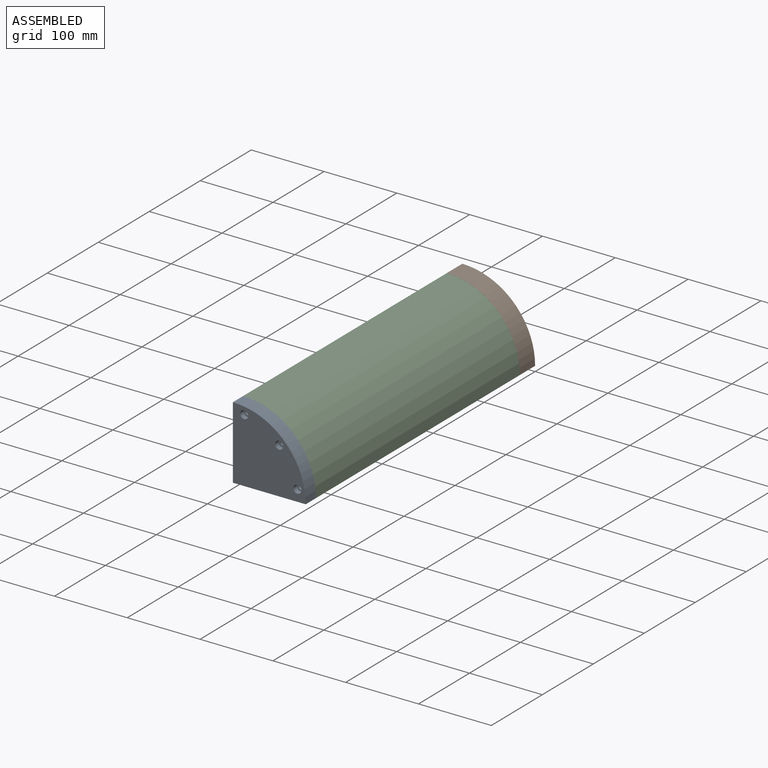
[diagram: assembled view]
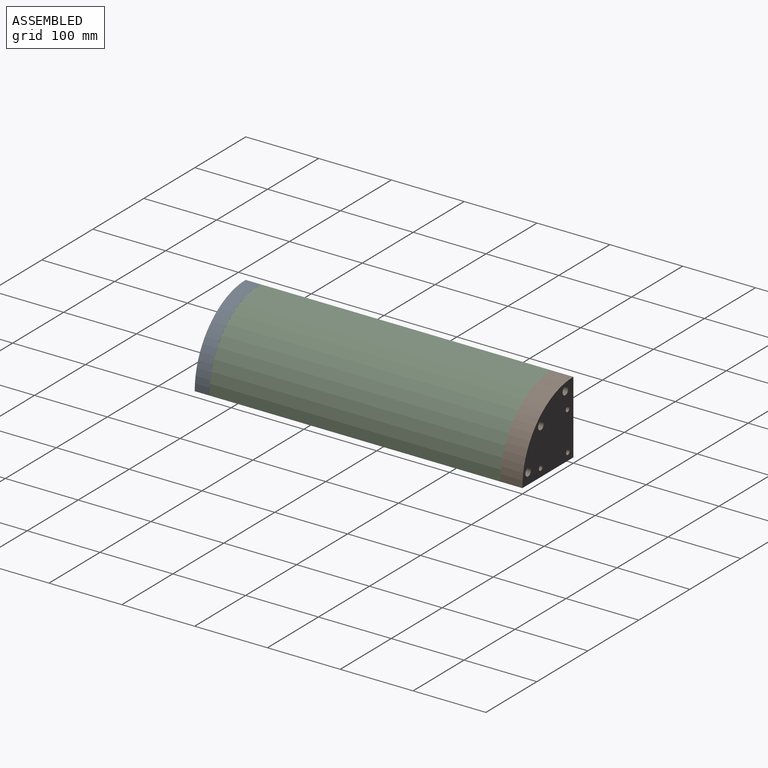
[diagram: assembled view, second angle]
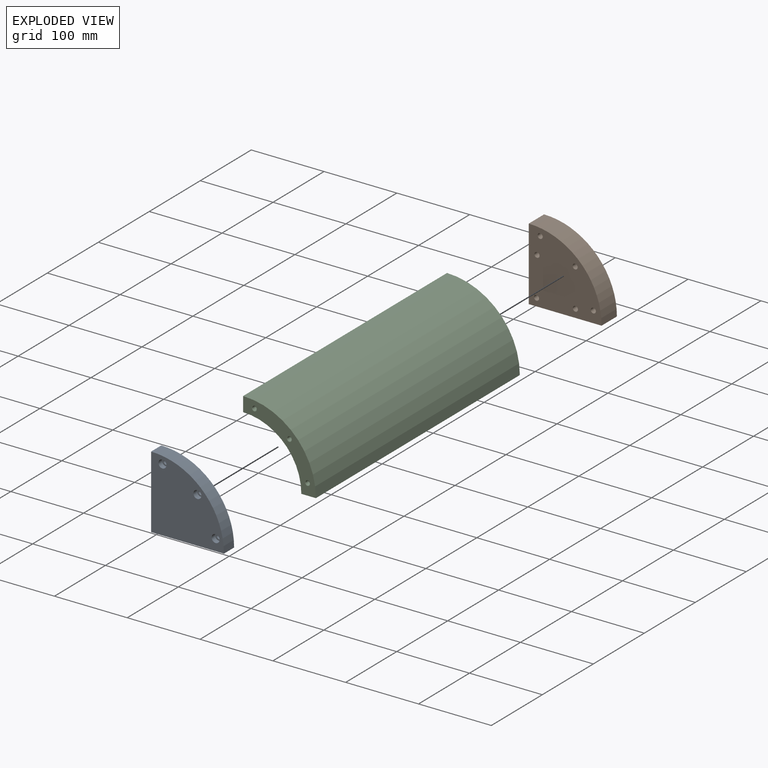
[diagram: exploded view]
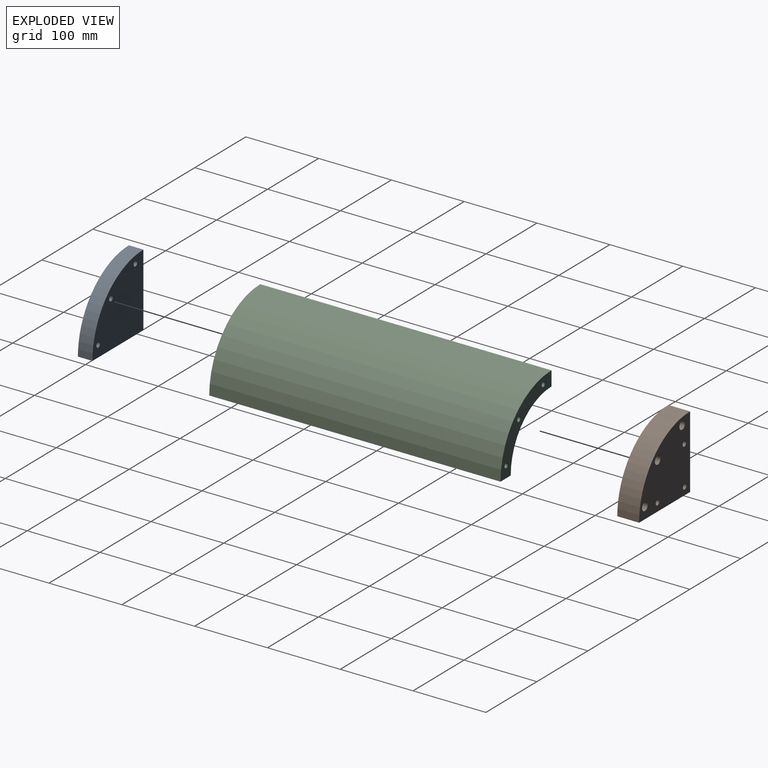
[diagram: exploded view, second angle]
ASSEMBLY  parts=3 mates=2
PART A: 14 faces, bbox 100x20x100 mm
  f0: plane 100x20mm, normal (0,0,-1), area 2000mm2, adj f1,f2,f3,f13
  f1: plane 100x20mm, normal (1,0,0), area 2000mm2, adj f0,f2,f3,f13
  f2: cylinder r=100mm len=100mm, axis (0,-1,0), area 3141.6mm2, adj f0,f1,f3,f13
  f3: plane 100x100mm, normal (0,-1,0), area 7568.9mm2, adj f0,f1,f2,f6,f9,f12
  f4: cylinder r=3.5mm len=13mm, axis (0,-1,0), area 285.9mm2, adj f5,f13
  f5: plane 11x11mm, normal (0,-1,0), area 56.5mm2, adj f4,f6
  f6: cylinder r=5.5mm len=11mm, axis (0,-1,0), area 241.9mm2, adj f3,f5
  f7: cylinder r=3.5mm len=13mm, axis (0,-1,0), area 285.9mm2, adj f8,f13
  f8: plane 11x11mm, normal (0,-1,0), area 56.5mm2, adj f7,f9
  f9: cylinder r=5.5mm len=11mm, axis (0,-1,0), area 241.9mm2, adj f3,f8
  f10: cylinder r=3.5mm len=13mm, axis (0,-1,0), area 285.9mm2, adj f11,f13
  f11: plane 11x11mm, normal (0,-1,0), area 56.5mm2, adj f10,f12
  f12: cylinder r=5.5mm len=11mm, axis (0,-1,0), area 241.9mm2, adj f3,f11
  f13: plane 100x100mm, normal (0,1,0), area 7738.5mm2, adj f0,f1,f2,f4,f7,f10
PART B: 17 faces, bbox 100x30x100 mm
  f0: plane 100x30mm, normal (0,0,-1), area 3000mm2, adj f1,f2,f3,f16
  f1: plane 100x30mm, normal (1,0,0), area 3000mm2, adj f0,f2,f3,f16
  f2: cylinder r=100mm len=100mm, axis (0,-1,0), area 4712.4mm2, adj f0,f1,f3,f16
  f3: plane 100x100mm, normal (0,1,0), area 7453.4mm2, adj f0,f1,f2,f6,f9,f12,f13,f14
  f4: cylinder r=3.5mm len=23mm, axis (0,1,0), area 505.8mm2, adj f5,f16
  f5: plane 11x11mm, normal (0,1,0), area 56.5mm2, adj f4,f6
  f6: cylinder r=5.5mm len=11mm, axis (0,1,0), area 241.9mm2, adj f3,f5
  f7: cylinder r=3.5mm len=23mm, axis (0,1,0), area 505.8mm2, adj f8,f16
  f8: plane 11x11mm, normal (0,1,0), area 56.5mm2, adj f7,f9
  f9: cylinder r=5.5mm len=11mm, axis (0,1,0), area 241.9mm2, adj f3,f8
  f10: cylinder r=3.5mm len=23mm, axis (0,1,0), area 505.8mm2, adj f11,f16
  f11: plane 11x11mm, normal (0,1,0), area 56.5mm2, adj f10,f12
  f12: cylinder r=5.5mm len=11mm, axis (0,1,0), area 241.9mm2, adj f3,f11
  f13: cylinder r=3.5mm len=30mm, axis (0,1,0), area 659.7mm2, adj f3,f16
  f14: cylinder r=3.5mm len=30mm, axis (0,1,0), area 659.7mm2, adj f3,f16
  f15: cylinder r=3.5mm len=30mm, axis (0,1,0), area 659.7mm2, adj f3,f16
  f16: plane 100x100mm, normal (0,-1,0), area 7623.1mm2, adj f0,f1,f2,f4,f7,f10,f13,f14
PART C: 24 faces, bbox 100x400x100 mm
  f0: plane 400x20mm, normal (0,0,-1), area 8000mm2, adj f2,f3,f4,f14
  f1: plane 400x20mm, normal (1,0,0), area 8000mm2, adj f2,f3,f4,f14
  f2: cylinder r=100mm len=400mm, axis (0,-1,0), area 62831.9mm2, adj f0,f1,f4,f14
  f3: cylinder r=80mm len=400mm, axis (0,-1,0), area 50265.5mm2, adj f0,f1,f4,f14
  f4: plane 100x100mm, normal (0,-1,0), area 2712mm2, adj f0,f1,f2,f3,f7,f10,f13
  f5: cone r=0mm half-angle=59deg, axis (0,-1,0), area 33mm2, adj f6
  f6: cylinder r=3mm len=14.7mm, axis (0,-1,0), area 277.1mm2, adj f5,f7
  f7: cone r=0mm half-angle=59deg, axis (0,-1,0), area 11.9mm2, adj f4,f6
  f8: cone r=0mm half-angle=59deg, axis (0,-1,0), area 33mm2, adj f9
  f9: cylinder r=3mm len=14.7mm, axis (0,-1,0), area 277.1mm2, adj f8,f10
  f10: cone r=0mm half-angle=59deg, axis (0,-1,0), area 11.9mm2, adj f4,f9
  f11: cone r=0mm half-angle=59deg, axis (0,-1,0), area 33mm2, adj f12
  f12: cylinder r=3mm len=14.7mm, axis (0,-1,0), area 277.1mm2, adj f11,f13
  f13: cone r=0mm half-angle=59deg, axis (0,-1,0), area 11.9mm2, adj f4,f12
  f14: plane 100x100mm, normal (0,1,0), area 2712mm2, adj f0,f1,f2,f3,f17,f20,f23
  f15: cone r=0mm half-angle=59deg, axis (0,1,0), area 33mm2, adj f16
  f16: cylinder r=3mm len=14.7mm, axis (0,1,0), area 277.1mm2, adj f15,f17
  f17: cone r=0mm half-angle=59deg, axis (0,1,0), area 11.9mm2, adj f14,f16
  f18: cone r=0mm half-angle=59deg, axis (0,1,0), area 33mm2, adj f19
  f19: cylinder r=3mm len=14.7mm, axis (0,1,0), area 277.1mm2, adj f18,f20
  f20: cone r=0mm half-angle=59deg, axis (0,1,0), area 11.9mm2, adj f14,f19
  f21: cone r=0mm half-angle=59deg, axis (0,1,0), area 33mm2, adj f22
  f22: cylinder r=3mm len=14.7mm, axis (0,1,0), area 277.1mm2, adj f21,f23
  f23: cone r=0mm half-angle=59deg, axis (0,1,0), area 11.9mm2, adj f14,f22
PLACE A rot(axis=(0,1,0),90deg) t=(0,-450,0)mm
PLACE B rot(axis=(0,1,0),90deg) t=(0,-450,0)mm fixed
PLACE C rot(axis=(0,1,0),90deg) t=(0,-450,0)mm
MATE fastened C.f8 <-> B.f4  axis (0,1,0) through (88.63,-30,15.63)mm
MATE fastened A.f4 <-> C.f8  axis (0,1,0) through (88.63,-430,15.63)mm
